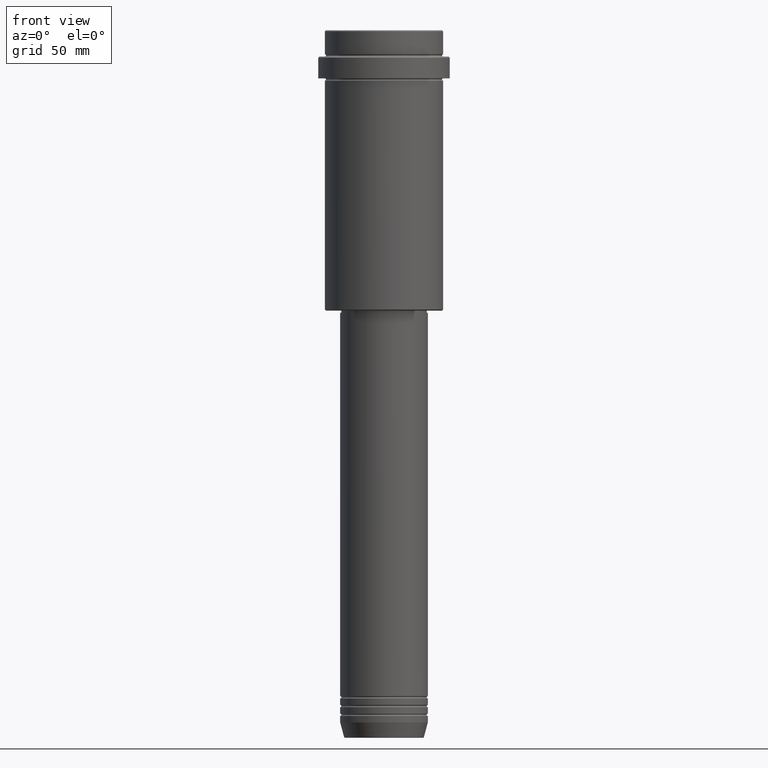
[diagram: clean part render]
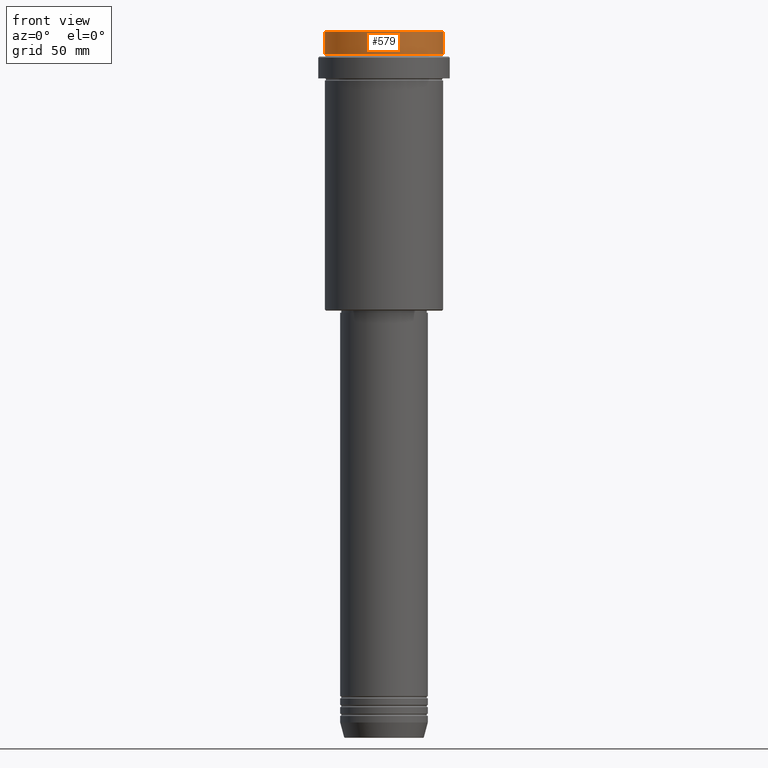
[diagram: same view with one face highlighted and labeled with its STEP entity id]
A machine part, front view. The second image highlights one B-rep face of the part: STEP entity #579.
In plain terms, the highlighted cylindrical surface (partial cylindrical patch) has radius 27 mm, axis along (-0, -0, 1).
Its self-contained STEP definition (entity closure, byte-faithful):
#2 = AXIS2_PLACEMENT_3D ( 'NONE', #466, #1119, #562 ) ;
#8 = DIRECTION ( 'NONE',  ( 1.000000000000000000, 0.000000000000000000, 0.000000000000000000 ) ) ;
#24 = VECTOR ( 'NONE', #1417, 1000.000000000000000 ) ;
#71 = CIRCLE ( 'NONE', #1146, 26.99999999999999645 ) ;
#90 = VECTOR ( 'NONE', #264, 1000.000000000000000 ) ;
#108 = EDGE_CURVE ( 'NONE', #376, #820, #362, .T. ) ;
#143 = CARTESIAN_POINT ( 'NONE',  ( 0.000000000000000000, 0.000000000000000000, -0.5000000000000038858 ) ) ;
#172 = CARTESIAN_POINT ( 'NONE',  ( 26.99999999999999645, 0.000000000000000000, -0.5000000000000038858 ) ) ;
#264 = DIRECTION ( 'NONE',  ( -0.000000000000000000, -0.000000000000000000, 1.000000000000000000 ) ) ;
#362 = LINE ( 'NONE', #574, #90 ) ;
#363 = DIRECTION ( 'NONE',  ( 0.000000000000000000, 0.000000000000000000, -1.000000000000000000 ) ) ;
#374 = CARTESIAN_POINT ( 'NONE',  ( 26.99999999999999645, 0.000000000000000000, -11.00000000000000178 ) ) ;
#376 = VERTEX_POINT ( 'NONE', #1064 ) ;
#403 = EDGE_LOOP ( 'NONE', ( #1170, #854, #1114, #517 ) ) ;
#466 = CARTESIAN_POINT ( 'NONE',  ( 0.000000000000000000, 0.000000000000000000, -11.00000000000000178 ) ) ;
#499 = EDGE_CURVE ( 'NONE', #1195, #1198, #626, .T. ) ;
#517 = ORIENTED_EDGE ( 'NONE', *, *, #731, .T. ) ;
#534 = CARTESIAN_POINT ( 'NONE',  ( 0.000000000000000000, 0.000000000000000000, 0.000000000000000000 ) ) ;
#558 = DIRECTION ( 'NONE',  ( 1.000000000000000000, 0.000000000000000000, 0.000000000000000000 ) ) ;
#562 = DIRECTION ( 'NONE',  ( 1.000000000000000000, 0.000000000000000000, 0.000000000000000000 ) ) ;
#574 = CARTESIAN_POINT ( 'NONE',  ( -26.99999999999999645, 3.306546357697853339E-15, 0.000000000000000000 ) ) ;
#579 = ADVANCED_FACE ( 'NONE', ( #633 ), #1093, .T. ) ;
#618 = CARTESIAN_POINT ( 'NONE',  ( 26.99999999999999645, 0.000000000000000000, 0.000000000000000000 ) ) ;
#626 = LINE ( 'NONE', #618, #24 ) ;
#633 = FACE_OUTER_BOUND ( 'NONE', #403, .T. ) ;
#634 = EDGE_CURVE ( 'NONE', #376, #1195, #780, .T. ) ;
#731 = EDGE_CURVE ( 'NONE', #1198, #820, #71, .T. ) ;
#780 = CIRCLE ( 'NONE', #2, 26.99999999999999645 ) ;
#820 = VERTEX_POINT ( 'NONE', #1157 ) ;
#854 = ORIENTED_EDGE ( 'NONE', *, *, #634, .T. ) ;
#993 = DIRECTION ( 'NONE',  ( -0.000000000000000000, -0.000000000000000000, 1.000000000000000000 ) ) ;
#1064 = CARTESIAN_POINT ( 'NONE',  ( -26.99999999999999645, 3.306546357697853339E-15, -11.00000000000000178 ) ) ;
#1093 = CYLINDRICAL_SURFACE ( 'NONE', #1283, 26.99999999999999645 ) ;
#1114 = ORIENTED_EDGE ( 'NONE', *, *, #499, .T. ) ;
#1119 = DIRECTION ( 'NONE',  ( -0.000000000000000000, -0.000000000000000000, 1.000000000000000000 ) ) ;
#1146 = AXIS2_PLACEMENT_3D ( 'NONE', #143, #363, #558 ) ;
#1157 = CARTESIAN_POINT ( 'NONE',  ( -26.99999999999999645, 3.306546357697853339E-15, -0.5000000000000038858 ) ) ;
#1170 = ORIENTED_EDGE ( 'NONE', *, *, #108, .F. ) ;
#1195 = VERTEX_POINT ( 'NONE', #374 ) ;
#1198 = VERTEX_POINT ( 'NONE', #172 ) ;
#1283 = AXIS2_PLACEMENT_3D ( 'NONE', #534, #993, #8 ) ;
#1417 = DIRECTION ( 'NONE',  ( -0.000000000000000000, -0.000000000000000000, 1.000000000000000000 ) ) ;